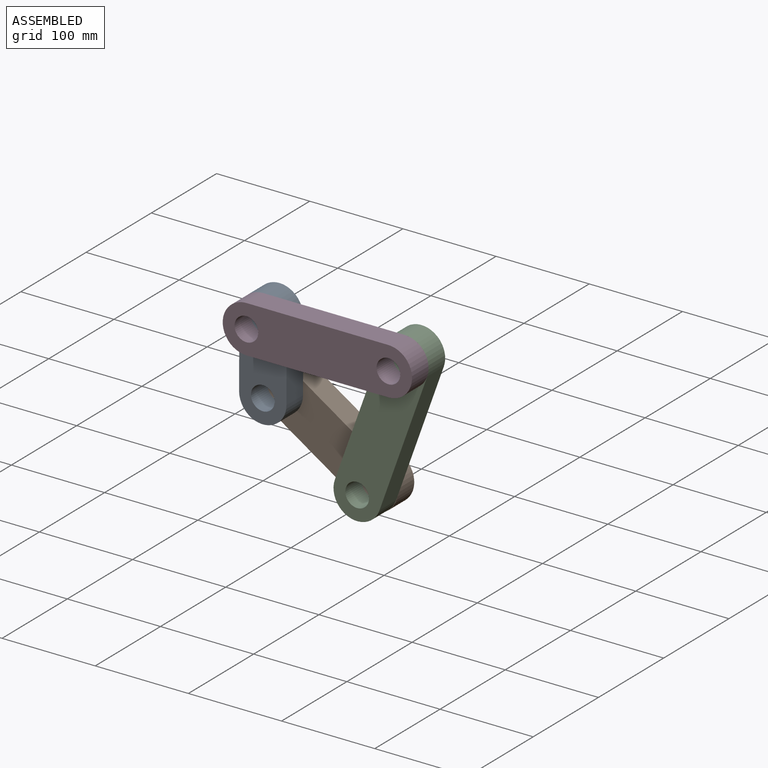
[diagram: assembled view]
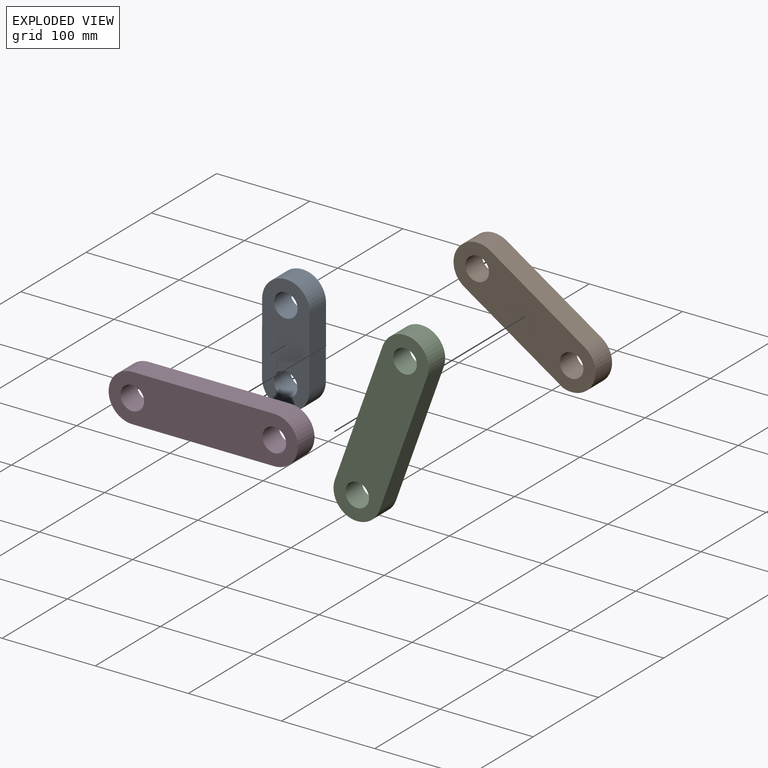
[diagram: exploded view]
GUIDED TOUR — MATED ASSEMBLY (Onshape document fd2c6b34e5c6ebeb5494b94b, AutoMate assembly fd2c6b34e5c6ebeb5494b94b_0f44a9b0765763df04a8d059_9b1a0a39049677998ca0f697_default)

This assembly has 4 components, labeled P0..P3 below (a component is one placed occurrence of a part; the same part can appear more than once), held together by 8 mates. A mate is a constraint between two components; its type names the relative motion it leaves free:
  BALL — leaves all rotation about the listed point free (a ball joint),
  CYLINDRICAL — leaves both rotation about and translation along the listed axis free,
  PIN_SLOT — leaves rotation about the listed axis plus translation along a slot free.
Axis/direction vectors are unit vectors and 'through' points are millimeter coordinates, both in the assembly's world frame.

MATES
  1. BALL "Ball 2": P1 <-> P2, direction (0.000, -1.000, 0.000) through (21.74, 95.86, -213.92) mm
  2. CYLINDRICAL "Cylindrical 1": P0 <-> P3, axis (0.000, -1.000, 0.000) through (-79.37, 70.46, -70.41) mm
  3. PIN_SLOT "Pin slot 2": P1 <-> P0, axis (0.000, -1.000, 0.000) through (-79.55, 95.86, -147.09) mm
  4. PIN_SLOT "Pin slot 3": P1 <-> P2, axis (0.000, -1.000, 0.000) through (21.74, 95.86, -213.92) mm
  5. CYLINDRICAL "Cylindrical 4": P2 <-> P3, axis (0.000, -1.000, 0.000) through (73.03, 70.46, -70.41) mm
  6. PIN_SLOT "Pin slot 7": P2 <-> P3, axis (0.000, -1.000, 0.000) through (73.03, 70.46, -70.41) mm
  7. PIN_SLOT "Pin slot 1": P0 <-> P3, axis (0.000, -1.000, 0.000) through (-79.37, 70.46, -70.41) mm
  8. BALL "Ball 1": P0 <-> P1, direction (0.000, 1.000, 0.000) through (-79.55, 95.86, -147.09) mm

ASSEMBLY ORDER
  1. P2 — the base component [order verified]
  2. P0 [order verified]
  3. P3 [order verified]
  4. P1 [order verified]
Order-tag legend:
  [order verified] — this step's position reverses a verified removal order: the component was checked to insert without passing through the ones already placed.

Of the 4 components, 4 carry the full construction recipe — the FeatureScript program that regenerates the part's solid from scratch; the rest are supplied as boundary geometry only.
Each toured component is shown spotlighted twice — in the assembled view, then in the exploded view, where a leader line traces a displaced component back to its assembled socket (saturated green if recipe-attached, orange if geometry-only; every other component desaturated gray) — followed by its recipe or geometry summary and the mates that hold it.
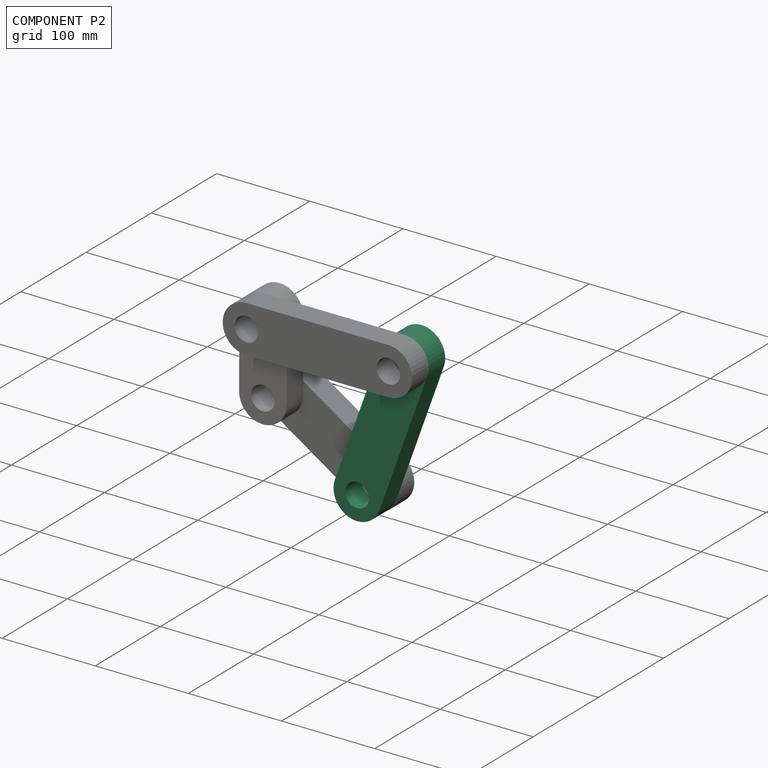
[diagram: component P2 — assembled]
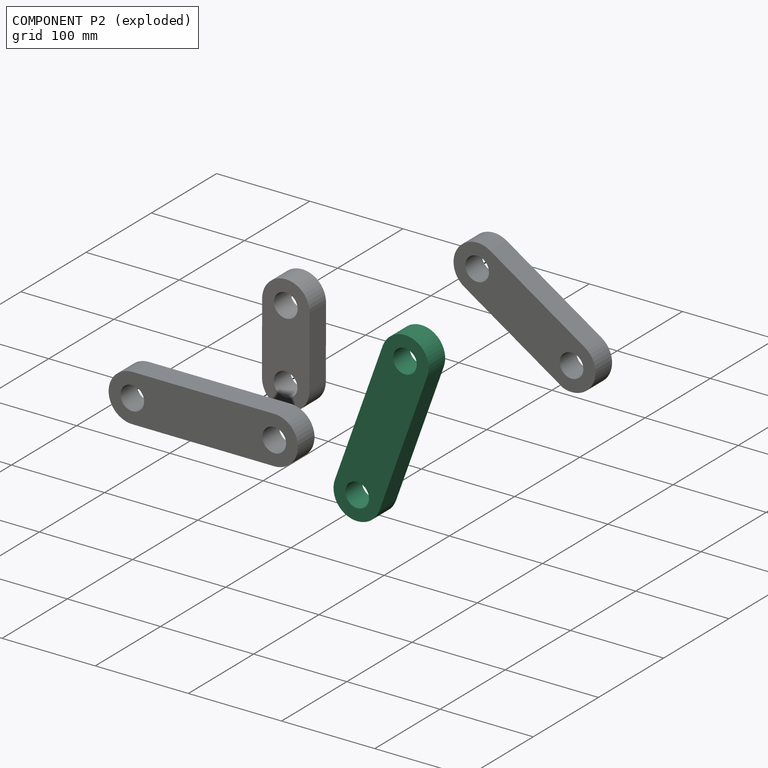
[diagram: component P2 — exploded]
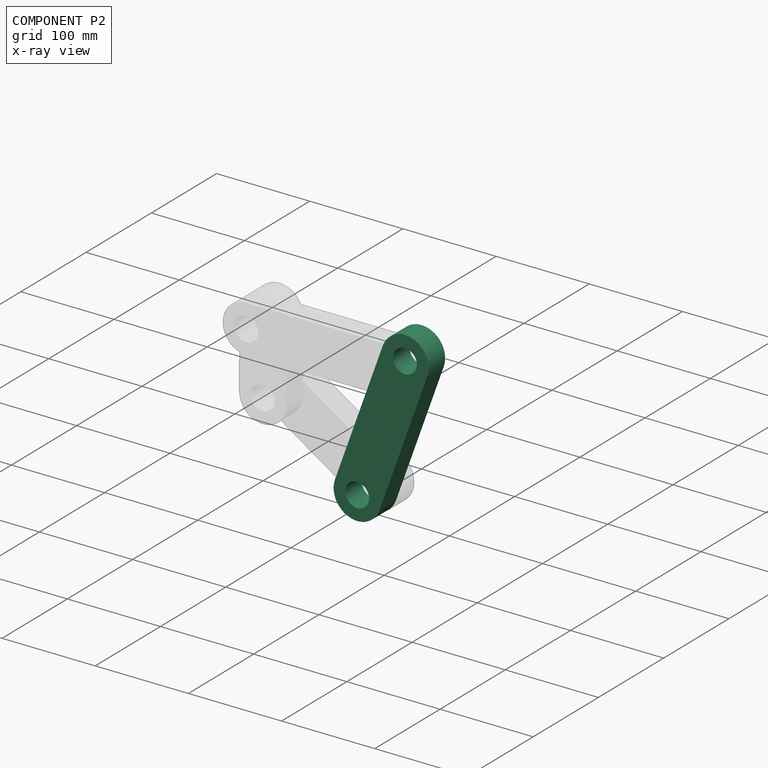
[diagram: component P2 — x-ray view]
COMPONENT P2 — recipe-attached (CADFS 00619377, mesh-verified: the recipe's output STEP matches this component's geometry to below the mesh-comparison resolution (tessellation chordal tolerance ~0.316 mm)).
Held by: BALL mate "Ball 2" to P1; PIN_SLOT mate "Pin slot 3" to P1; CYLINDRICAL mate "Cylindrical 4" to P3; PIN_SLOT mate "Pin slot 7" to P3.
Construction recipe (FeatureScript — the CAD program that rebuilds this solid; sketch coordinates are in the units given by the * unit suffixes, e.g. mm):

FeatureScript 1511;
import(path : "onshape/std/geometry.fs", version : "1511.0");
import(path : "onshape/std/common.fs", version : "1511.0");
const mm = millimeter;
const VERTEX = EntityType.VERTEX;
const EDGE = EntityType.EDGE;
const FACE = EntityType.FACE;
const BODY = EntityType.BODY;
function v(x, y){return vector(x, y);}
function OD(order){return orderDisambiguation(order);}
function OSD(set){return originalSetDisambiguation(set);}
function TD(topology){return topologyDisambiguation(topology);}
function TDD(query){return trueDependencyDisambiguation(query);}
function sQuery(a, b, c) {return sketchEntityQuery(a, b, c);}

annotation { "Feature Type Name" : "Feature", "Feature Type Description" : "" }
export const myFeature = defineFeature(function(context is Context, id is Id, definition is map)
    precondition{}
    {
        {
            var Q0;
            Q0=qCreatedBy(makeId("Front.planeOp"),FACE);
            var sketch = newSketch(context, id + "F0", { "sketchPlane" : qUnion([Q0])});
            skLineSegment(sketch, "E0", {"start": v(-16.34, 50.8) * mm, "end": v(136.06, 50.8) * mm});
            skLineSegment(sketch, "E1", {"start": v(-16.34, 0) * mm, "end": v(136.06, 0) * mm});
            skArc(sketch, "E2", {"start": v(-16.34, 50.8) * mm, "mid": v(-41.74, 25.4) * mm, "end": v(-16.34, 0) * mm});
            skArc(sketch, "E3", {"start": v(136.06, 0) * mm, "mid": v(161.46, 25.4) * mm, "end": v(136.06, 50.8) * mm});
            skCircle(sketch, "E4", {"center": v(-16.34, 25.4) * mm, "radius": 12.7 * mm});
            skCircle(sketch, "E5", {"center": v(136.06, 25.4) * mm, "radius": 12.7 * mm});
            skSolve(sketch);
        }
        {
            var Q0;
            Q0=makeQuery(id+"F0.imprint","IMPRINT",FACE,{"disambiguationData":[TD([[makeQuery(id+"F0.imprint","IMPRINT",EDGE,{"derivedFrom":sQuery(id+"F0.wireOp",EDGE,"E0")}),-1.0]])]});
            extrude(context, id + "F1", {"entities" : qUnion([Q0]), "depth" : 25.4 * mm, "offsetDistance" : 25.4 * mm});
        }
    });
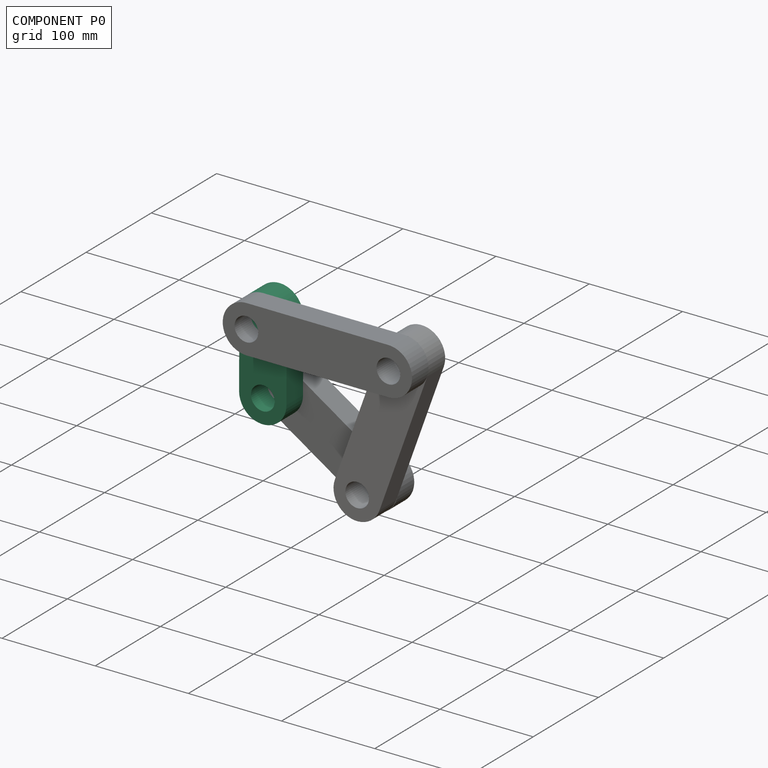
[diagram: component P0 — assembled]
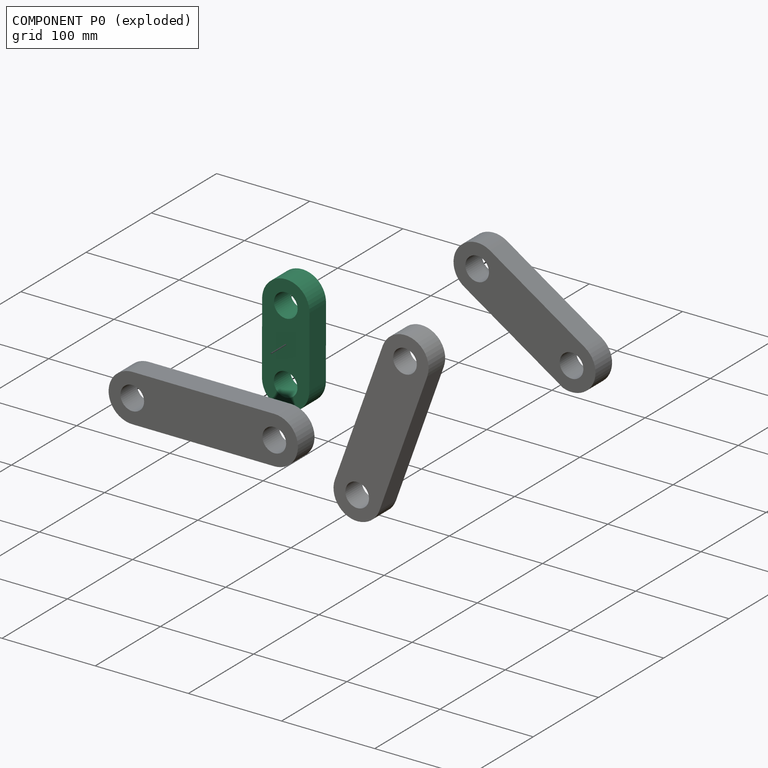
[diagram: component P0 — exploded]
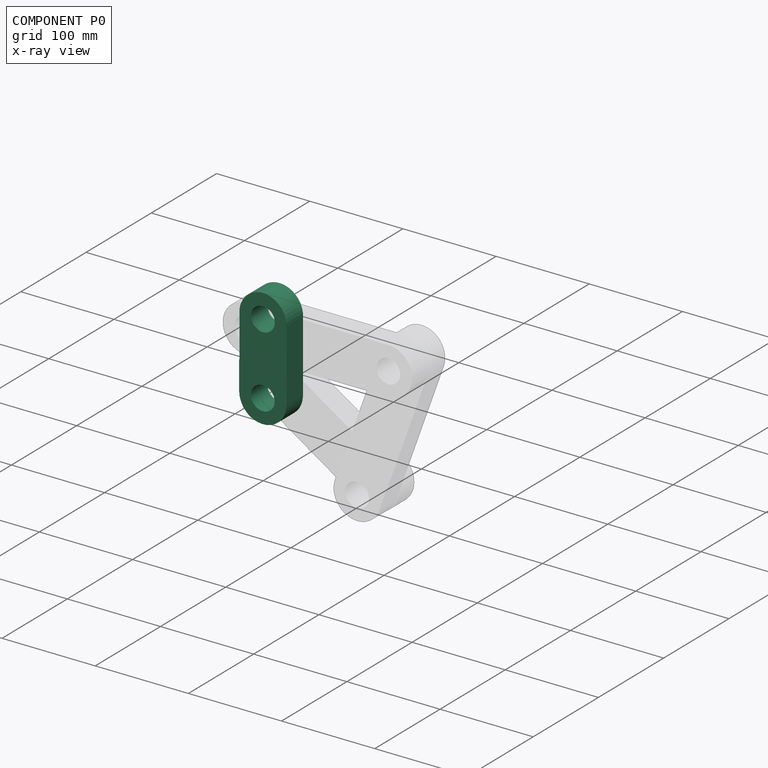
[diagram: component P0 — x-ray view]
COMPONENT P0 — recipe-attached (CADFS 00619383, mesh-verified: the recipe's output STEP matches this component's geometry to below the mesh-comparison resolution (tessellation chordal tolerance ~0.209 mm)).
Held by: CYLINDRICAL mate "Cylindrical 1" to P3; PIN_SLOT mate "Pin slot 2" to P1; PIN_SLOT mate "Pin slot 1" to P3; BALL mate "Ball 1" to P1.
Construction recipe (FeatureScript — the CAD program that rebuilds this solid; sketch coordinates are in the units given by the * unit suffixes, e.g. mm):

FeatureScript 1511;
import(path : "onshape/std/geometry.fs", version : "1511.0");
import(path : "onshape/std/common.fs", version : "1511.0");
const mm = millimeter;
const VERTEX = EntityType.VERTEX;
const EDGE = EntityType.EDGE;
const FACE = EntityType.FACE;
const BODY = EntityType.BODY;
function v(x, y){return vector(x, y);}
function OD(order){return orderDisambiguation(order);}
function OSD(set){return originalSetDisambiguation(set);}
function TD(topology){return topologyDisambiguation(topology);}
function TDD(query){return trueDependencyDisambiguation(query);}
function sQuery(a, b, c) {return sketchEntityQuery(a, b, c);}

annotation { "Feature Type Name" : "Feature", "Feature Type Description" : "" }
export const myFeature = defineFeature(function(context is Context, id is Id, definition is map)
    precondition{}
    {
        {
            var Q0;
            Q0=qCreatedBy(makeId("Front.planeOp"),FACE);
            var sketch = newSketch(context, id + "F0", { "sketchPlane" : qUnion([Q0])});
            skLineSegment(sketch, "E0", {"start": v(-25.9, 50.8) * mm, "end": v(50.3, 50.8) * mm});
            skLineSegment(sketch, "E1", {"start": v(-26.38, 0) * mm, "end": v(51.25, 0) * mm});
            skArc(sketch, "E2", {"start": v(-25.9, 50.8) * mm, "mid": v(-51.78, 25.64) * mm, "end": v(-26.38, 0) * mm});
            skArc(sketch, "E3", {"start": v(51.25, 0) * mm, "mid": v(75.7, 25.87) * mm, "end": v(50.3, 50.8) * mm});
            skCircle(sketch, "E4", {"center": v(-26.38, 25.4) * mm, "radius": 12.7 * mm});
            skCircle(sketch, "E5", {"center": v(50.3, 25.4) * mm, "radius": 12.7 * mm});
            skSolve(sketch);
        }
        {
            var Q0;
            Q0=makeQuery(id+"F0.imprint","IMPRINT",FACE,{"disambiguationData":[TD([[makeQuery(id+"F0.imprint","IMPRINT",EDGE,{"derivedFrom":sQuery(id+"F0.wireOp",EDGE,"E0")}),-1.0]])]});
            extrude(context, id + "F1", {"entities" : qUnion([Q0]), "depth" : 25.4 * mm, "offsetDistance" : 25.4 * mm});
        }
    });
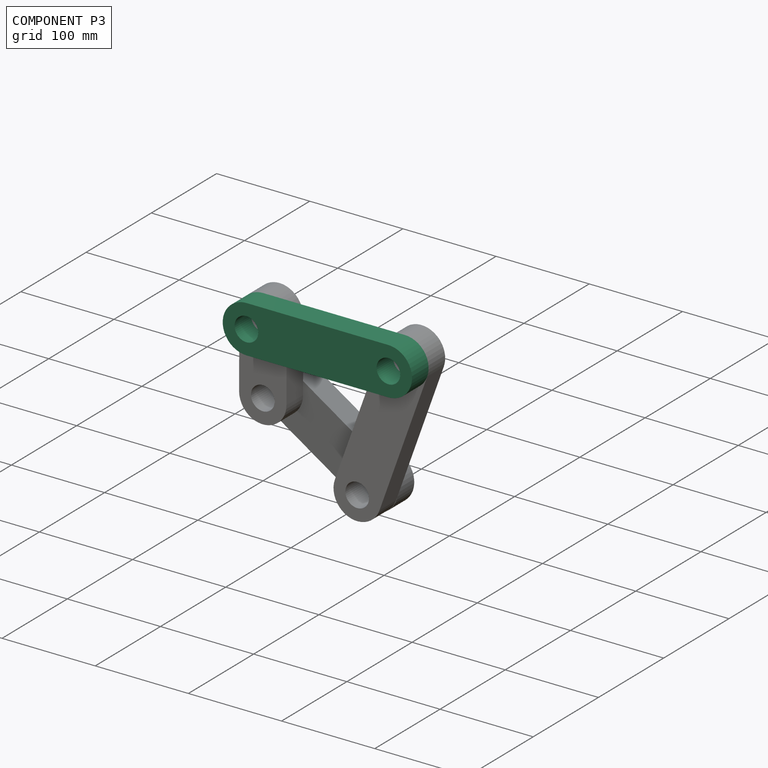
[diagram: component P3 — assembled]
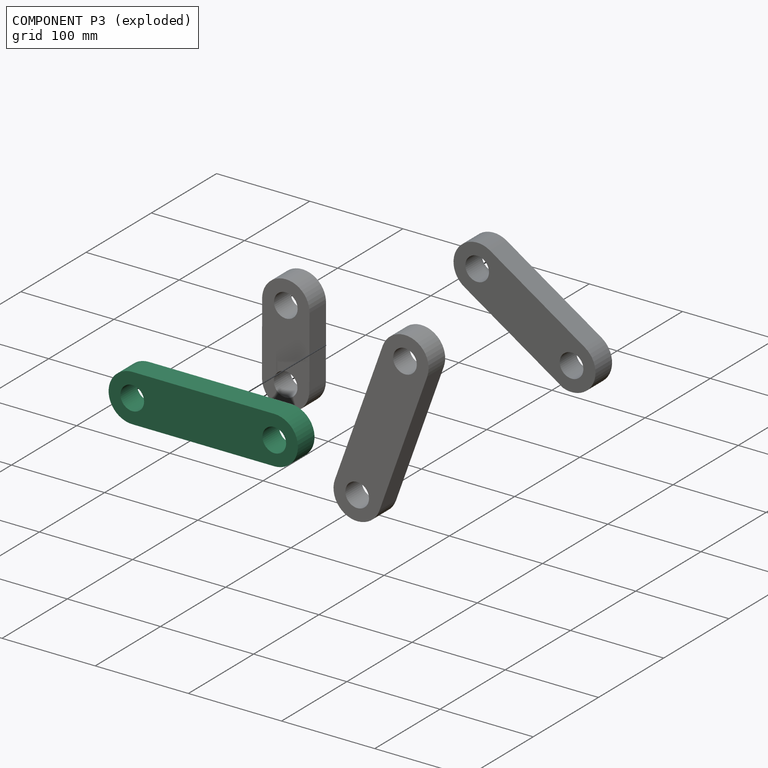
[diagram: component P3 — exploded]
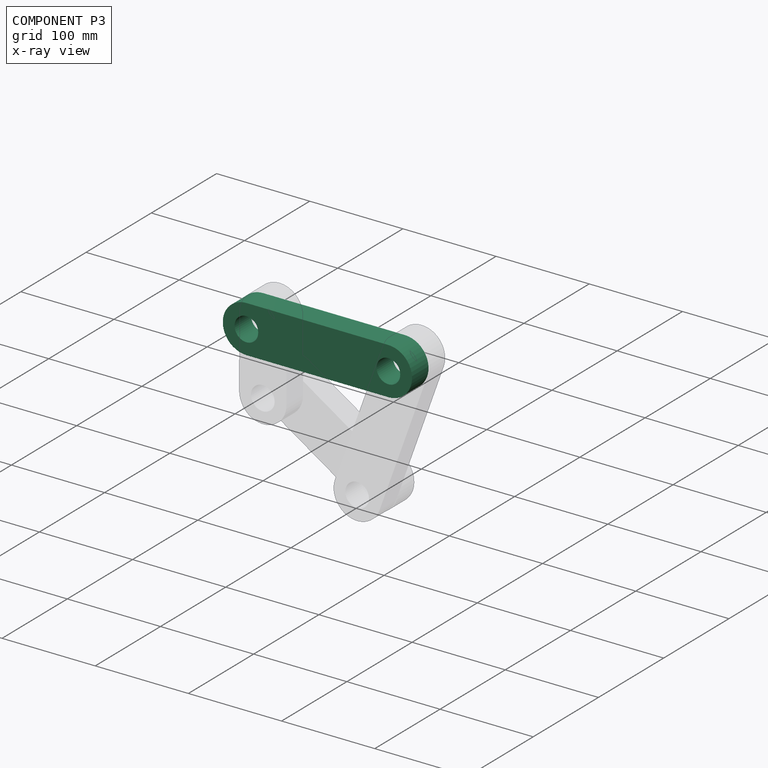
[diagram: component P3 — x-ray view]
COMPONENT P3 — same part as P2 (CADFS 00619377); its construction recipe is shown at P2.
Held by: CYLINDRICAL mate "Cylindrical 1" to P0; CYLINDRICAL mate "Cylindrical 4" to P2; PIN_SLOT mate "Pin slot 7" to P2; PIN_SLOT mate "Pin slot 1" to P0.
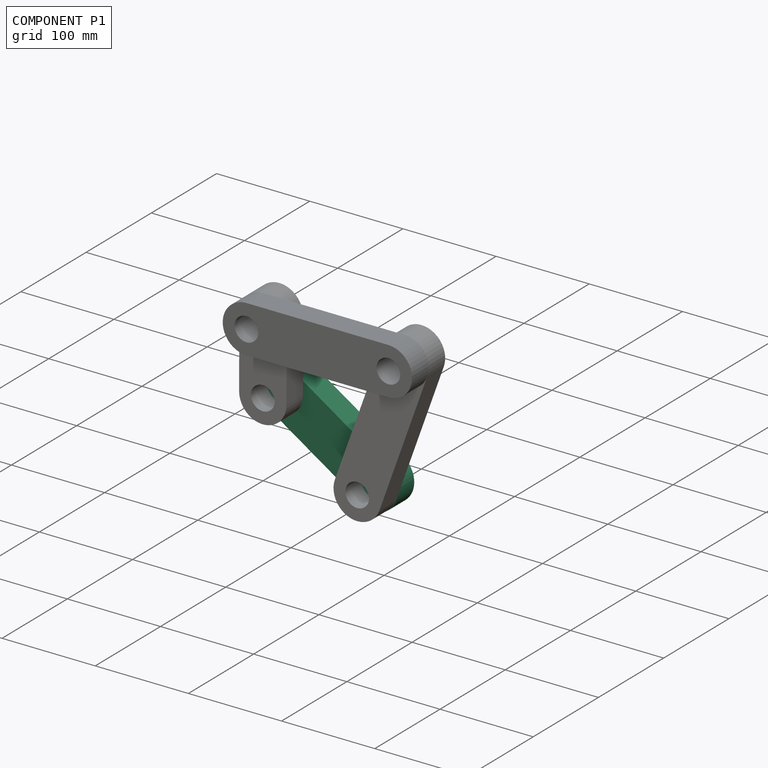
[diagram: component P1 — assembled]
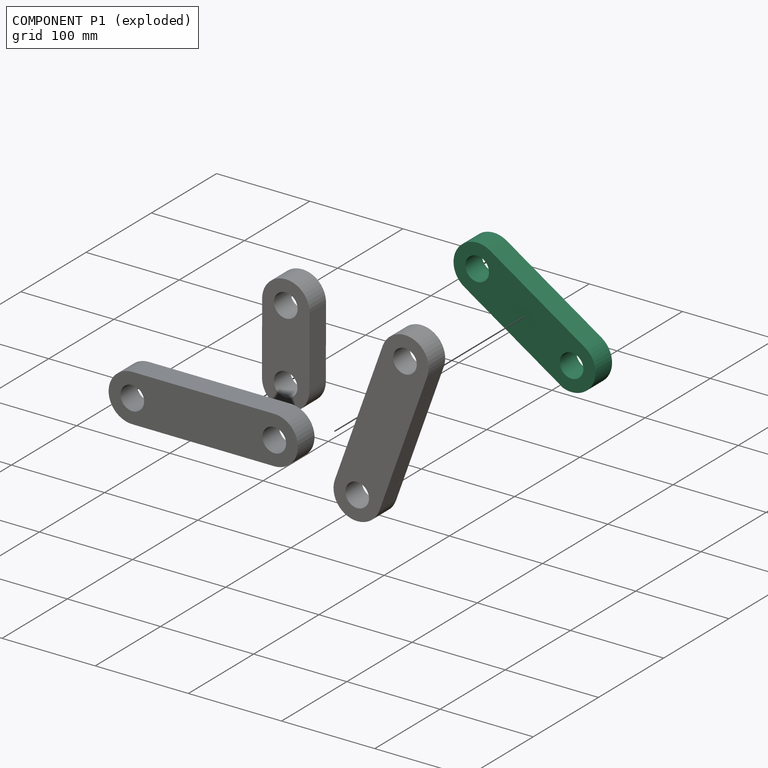
[diagram: component P1 — exploded]
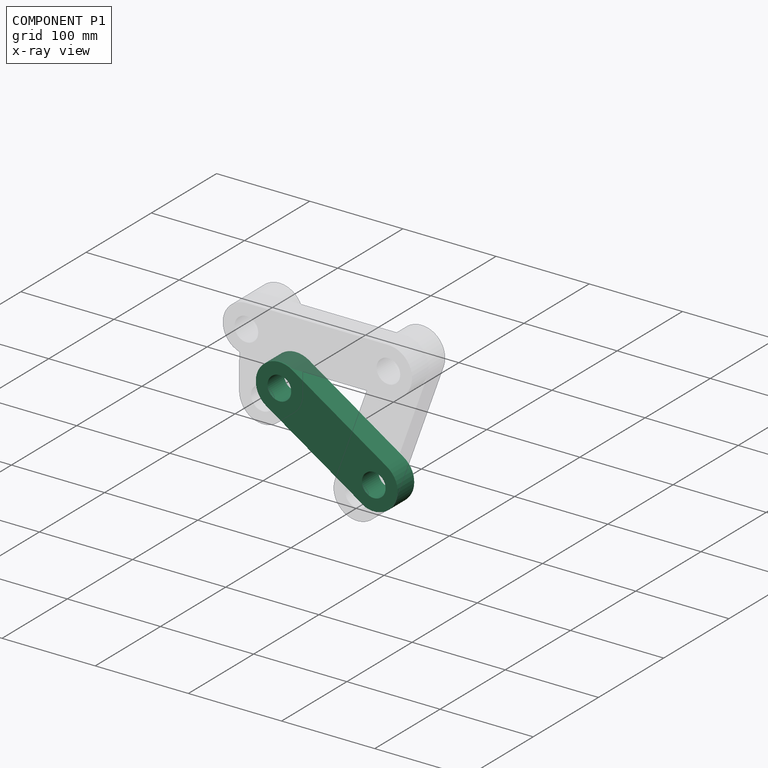
[diagram: component P1 — x-ray view]
COMPONENT P1 — recipe-attached (CADFS 00619381, mesh-verified: the recipe's output STEP matches this component's geometry to below the mesh-comparison resolution (tessellation chordal tolerance ~0.272 mm)).
Held by: BALL mate "Ball 2" to P2; PIN_SLOT mate "Pin slot 2" to P0; PIN_SLOT mate "Pin slot 3" to P2; BALL mate "Ball 1" to P0.
Construction recipe (FeatureScript — the CAD program that rebuilds this solid; sketch coordinates are in the units given by the * unit suffixes, e.g. mm):

FeatureScript 1511;
import(path : "onshape/std/geometry.fs", version : "1511.0");
import(path : "onshape/std/common.fs", version : "1511.0");
const mm = millimeter;
const VERTEX = EntityType.VERTEX;
const EDGE = EntityType.EDGE;
const FACE = EntityType.FACE;
const BODY = EntityType.BODY;
function v(x, y){return vector(x, y);}
function OD(order){return orderDisambiguation(order);}
function OSD(set){return originalSetDisambiguation(set);}
function TD(topology){return topologyDisambiguation(topology);}
function TDD(query){return trueDependencyDisambiguation(query);}
function sQuery(a, b, c) {return sketchEntityQuery(a, b, c);}

annotation { "Feature Type Name" : "Feature", "Feature Type Description" : "" }
export const myFeature = defineFeature(function(context is Context, id is Id, definition is map)
    precondition{}
    {
        {
            var Q0;
            Q0=qCreatedBy(makeId("Front.planeOp"),FACE);
            var sketch = newSketch(context, id + "F0", { "sketchPlane" : qUnion([Q0])});
            skLineSegment(sketch, "E0", {"start": v(-35.43, 50.8) * mm, "end": v(86.36, 50.8) * mm});
            skLineSegment(sketch, "E1", {"start": v(-35, 0) * mm, "end": v(92, 0) * mm});
            skArc(sketch, "E2", {"start": v(-35.43, 50.8) * mm, "mid": v(-60.4, 25.18) * mm, "end": v(-35, 0) * mm});
            skArc(sketch, "E3", {"start": v(92, 0) * mm, "mid": v(111.92, 27.93) * mm, "end": v(86.36, 50.8) * mm});
            skCircle(sketch, "E4", {"center": v(-35, 25.4) * mm, "radius": 12.7 * mm});
            skCircle(sketch, "E5", {"center": v(86.36, 25.09) * mm, "radius": 12.7 * mm});
            skSolve(sketch);
        }
        {
            var Q0;
            Q0=makeQuery(id+"F0.imprint","IMPRINT",FACE,{"disambiguationData":[TD([[makeQuery(id+"F0.imprint","IMPRINT",EDGE,{"derivedFrom":sQuery(id+"F0.wireOp",EDGE,"E0")}),-1.0]])]});
            extrude(context, id + "F1", {"entities" : qUnion([Q0]), "depth" : 25.4 * mm, "offsetDistance" : 25.4 * mm});
        }
    });
PROVENANCE & LICENSES
Assembly (occurrences, transforms, mates, per-part STEP geometry): AutoMate dataset, Zenodo record 7776208, CC0.
Construction recipes: CADFS (HuggingFace VladPyatov/CADFS, CC-BY-4.0, layered over the ABC dataset), FeatureScript reconstruction programs keyed by ABC model id.
Join: ABC meta listings map ABC model id -> Onshape documentId; within a shared document, parts are matched by geometric signature (bounding-box dims + volume at 0.1% relative tolerance, exact B-rep face/solid counts).
Verification: 4 of this assembly's 4 components carry a recipe attachment, and every attachment is mesh-verified: the CADFS STEP and the AutoMate member STEP were compared as meshes in their shared local frame (symmetric sampled-point-to-mesh distance); worst across the 4 attachments: below the mesh-comparison resolution (tessellation chordal tolerance ~0.316 mm) on a 211 mm part.
Renders: orthographic iso camera (az 35 / el 25); the floor grid conveys scale (grid pitch printed in each image; no ruler). In the exploded view each component is displaced by its stored offset vector: the offsets alone carry the explosion direction (mate normal/axis signs are not orientation cues and do not encode it), and separation distances are assigned per mate-chain, not proportionally to assembly-order depth.
